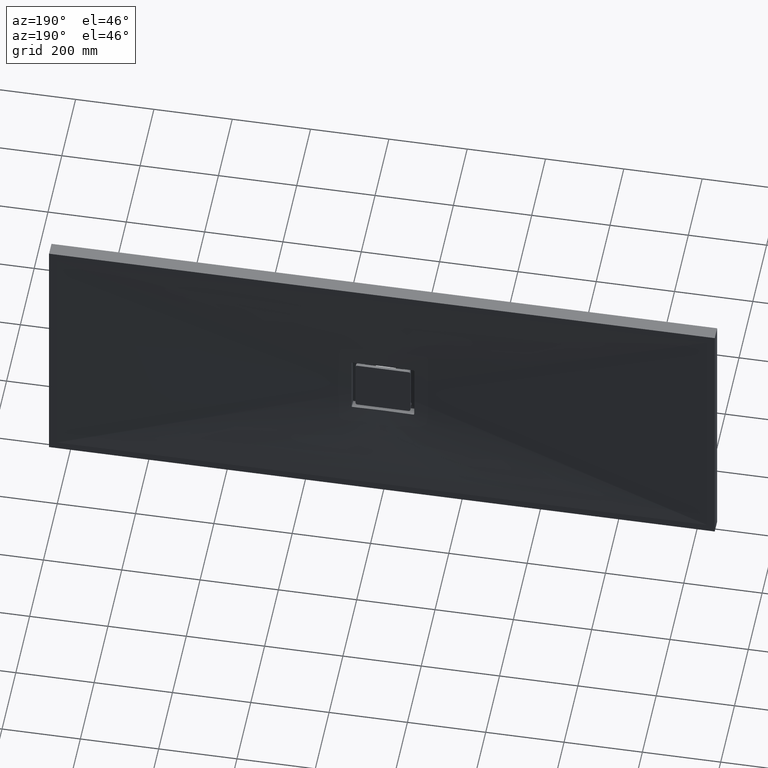
[diagram: clean part render]
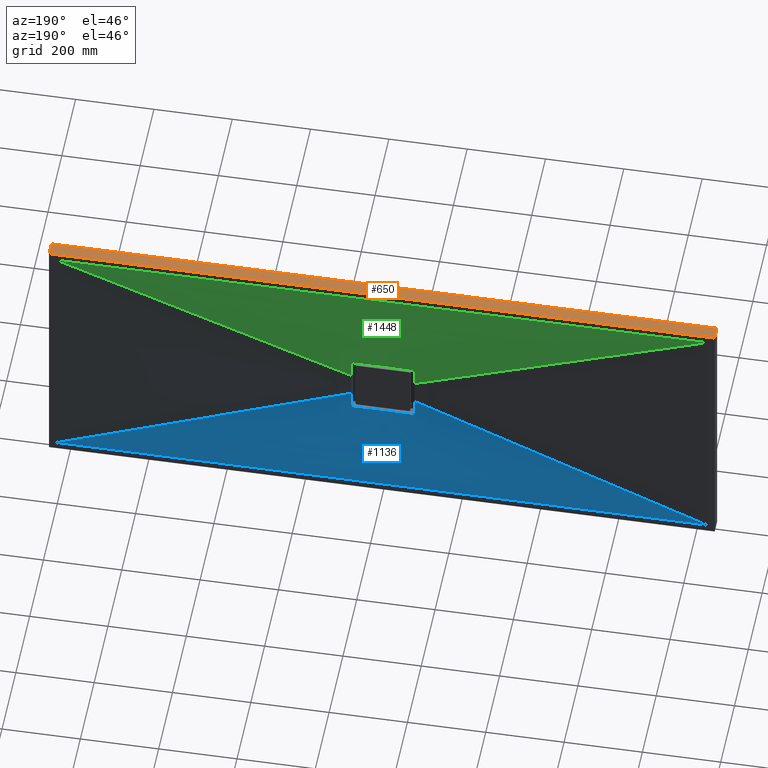
[diagram: same view with three faces highlighted in distinct colors, each labeled with its STEP entity id]
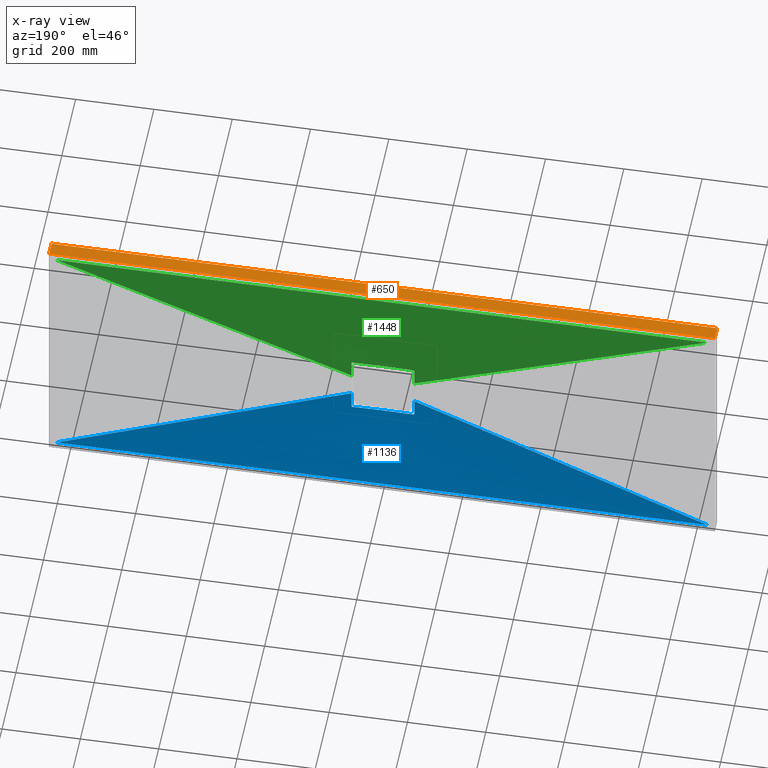
[diagram: x-ray of the same camera — body ghosted, the three highlighted faces saturated]
A machine part, auxiliary view with three faces highlighted in distinct colors.
The next image is the same camera in x-ray (body ghosted, the three faces saturated) — at least one of them is partly hidden behind the body in this view.
Their STEP definitions:

[orange] entity #650 — the highlighted planar face has unit normal (0, 0, -1).
#125 = EDGE_CURVE ( 'NONE', #1651, #409, #2496, .T. ) ;
#202 = VECTOR ( 'NONE', #2241, 1000.000000000000000 ) ;
#226 = VECTOR ( 'NONE', #1838, 1000.000000000000000 ) ;
#241 = LINE ( 'NONE', #2046, #226 ) ;
#409 = VERTEX_POINT ( 'NONE', #1502 ) ;
#631 = VECTOR ( 'NONE', #833, 1000.000000000000000 ) ;
#650 = ADVANCED_FACE ( 'NONE', ( #2344 ), #1731, .F. ) ;
#657 = LINE ( 'NONE', #1629, #631 ) ;
#728 = ORIENTED_EDGE ( 'NONE', *, *, #3049, .T. ) ;
#833 = DIRECTION ( 'NONE',  ( 1.000000000000000000, 0.0000000000000000000, 0.0000000000000000000 ) ) ;
#1092 = ORIENTED_EDGE ( 'NONE', *, *, #125, .T. ) ;
#1117 = ORIENTED_EDGE ( 'NONE', *, *, #1386, .F. ) ;
#1330 = LINE ( 'NONE', #2235, #202 ) ;
#1377 = DIRECTION ( 'NONE',  ( -1.000000000000000000, 0.0000000000000000000, -0.0000000000000000000 ) ) ;
#1386 = EDGE_CURVE ( 'NONE', #1651, #1475, #657, .T. ) ;
#1444 = DIRECTION ( 'NONE',  ( -0.0000000000000000000, -1.000000000000000000, -0.0000000000000000000 ) ) ;
#1475 = VERTEX_POINT ( 'NONE', #2923 ) ;
#1502 = CARTESIAN_POINT ( 'NONE',  ( -850.0000000000001100, 0.0000000000000000000, 349.9999999999999400 ) ) ;
#1629 = CARTESIAN_POINT ( 'NONE',  ( -850.0000000000001100, 35.00000000000000000, 349.9999999999999400 ) ) ;
#1651 = VERTEX_POINT ( 'NONE', #1965 ) ;
#1731 = PLANE ( 'NONE',  #1849 ) ;
#1811 = EDGE_CURVE ( 'NONE', #1475, #2267, #241, .T. ) ;
#1819 = ORIENTED_EDGE ( 'NONE', *, *, #1811, .F. ) ;
#1838 = DIRECTION ( 'NONE',  ( -0.0000000000000000000, -1.000000000000000000, -0.0000000000000000000 ) ) ;
#1849 = AXIS2_PLACEMENT_3D ( 'NONE', #2542, #2591, #1377 ) ;
#1965 = CARTESIAN_POINT ( 'NONE',  ( -850.0000000000001100, 35.00000000000000000, 349.9999999999999400 ) ) ;
#1991 = EDGE_LOOP ( 'NONE', ( #728, #1819, #1117, #1092 ) ) ;
#2046 = CARTESIAN_POINT ( 'NONE',  ( 849.9999999999997700, 35.00000000000000000, 349.9999999999999400 ) ) ;
#2235 = CARTESIAN_POINT ( 'NONE',  ( -850.0000000000001100, 0.0000000000000000000, 349.9999999999999400 ) ) ;
#2241 = DIRECTION ( 'NONE',  ( 1.000000000000000000, 0.0000000000000000000, 0.0000000000000000000 ) ) ;
#2267 = VERTEX_POINT ( 'NONE', #2673 ) ;
#2344 = FACE_OUTER_BOUND ( 'NONE', #1991, .T. ) ;
#2491 = VECTOR ( 'NONE', #1444, 1000.000000000000000 ) ;
#2496 = LINE ( 'NONE', #3105, #2491 ) ;
#2542 = CARTESIAN_POINT ( 'NONE',  ( -850.0000000000001100, 35.00000000000000000, 349.9999999999999400 ) ) ;
#2591 = DIRECTION ( 'NONE',  ( 0.0000000000000000000, 0.0000000000000000000, -1.000000000000000000 ) ) ;
#2673 = CARTESIAN_POINT ( 'NONE',  ( 849.9999999999997700, 0.0000000000000000000, 349.9999999999999400 ) ) ;
#2923 = CARTESIAN_POINT ( 'NONE',  ( 849.9999999999997700, 35.00000000000000000, 349.9999999999999400 ) ) ;
#3049 = EDGE_CURVE ( 'NONE', #409, #2267, #1330, .T. ) ;
#3105 = CARTESIAN_POINT ( 'NONE',  ( -850.0000000000001100, 35.00000000000000000, 349.9999999999999400 ) ) ;

[blue] entity #1136 — the highlighted face is a freeform B-spline surface patch.
#1 = CARTESIAN_POINT ( 'NONE',  ( 78.30547956421020200, 21.03217623247903500, -79.87234740618295300 ) ) ;
#17 = CARTESIAN_POINT ( 'NONE',  ( -9.046871849153447400, 20.00000000000000000, -79.61360674409510800 ) ) ;
#18 = CARTESIAN_POINT ( 'NONE',  ( -12.91942312582411600, 20.05021632625618000, -79.99999999999997200 ) ) ;
#23 = CARTESIAN_POINT ( 'NONE',  ( -553.3333333333303000, 35.00000000000000000, -329.9999999999999400 ) ) ;
#25 = ORIENTED_EDGE ( 'NONE', *, *, #1301, .F. ) ;
#32 = CARTESIAN_POINT ( 'NONE',  ( -32.29412208064554300, 20.30261023562827900, -79.99999999999997200 ) ) ;
#33 = CARTESIAN_POINT ( 'NONE',  ( -484.1666666666631600, 35.00000000000000000, -329.9999999999999400 ) ) ;
#41 = CARTESIAN_POINT ( 'NONE',  ( -22.23164755197436200, 20.00000000000000400, -76.97459716148252100 ) ) ;
#67 = CARTESIAN_POINT ( 'NONE',  ( 60.17644024256305400, 20.00000000000000000, -52.85353583347521300 ) ) ;
#77 = CARTESIAN_POINT ( 'NONE',  ( 4.523666722365327100, 20.00000000000000000, -80.00000000000007100 ) ) ;
#88 = CARTESIAN_POINT ( 'NONE',  ( 78.14677546264489600, 21.03136382548155900, -79.92036934865508600 ) ) ;
#94 = CARTESIAN_POINT ( 'NONE',  ( 276.6666666666709500, 35.00000000000000000, -330.0000000000000600 ) ) ;
#103 = CARTESIAN_POINT ( 'NONE',  ( -25.83609175240990700, 20.20314655147577600, -79.99999999999995700 ) ) ;
#104 = CARTESIAN_POINT ( 'NONE',  ( -6.460740131030348700, 20.00000681553335000, -79.99999999999998600 ) ) ;
#138 = CARTESIAN_POINT ( 'NONE',  ( -760.8333333333325800, 35.00000000000000000, -329.9999999999998900 ) ) ;
#149 = CARTESIAN_POINT ( 'NONE',  ( 25.83385293265633500, 20.20311384259813500, -80.00000000000000000 ) ) ;
#167 = CARTESIAN_POINT ( 'NONE',  ( -45.21009868158184000, 20.50789698637204900, -79.99999999999997200 ) ) ;
#174 = EDGE_LOOP ( 'NONE', ( #2926, #1645, #1406, #608, #373, #698, #25, #1833 ) ) ;
#179 = VERTEX_POINT ( 'NONE', #336 ) ;
#209 = CARTESIAN_POINT ( 'NONE',  ( -34.58333333332801400, 35.00000000000000000, -330.0000000000000600 ) ) ;
#216 = CARTESIAN_POINT ( 'NONE',  ( -69.16666666666148400, 35.00000000000000000, -330.0000000000000600 ) ) ;
#223 = CARTESIAN_POINT ( 'NONE',  ( 77.49999999999978700, 21.02415405481594500, -79.99999999999998600 ) ) ;
#233 = CARTESIAN_POINT ( 'NONE',  ( -80.00000000000024200, 20.11235715227696000, -31.80722891566264800 ) ) ;
#259 = CARTESIAN_POINT ( 'NONE',  ( 6.457946383693451900, 19.99999318594039400, -80.00000000000000000 ) ) ;
#262 = B_SPLINE_CURVE_WITH_KNOTS ( 'NONE', 3,
 ( #2076, #2050, #2319, #2335, #2361, #2373 ),
 .UNSPECIFIED., .F., .F.,
 ( 4, 2, 4 ),
 ( 0.0000000000000000000, 0.02285051133087277100, 0.04570102266174554100 ),
 .UNSPECIFIED. ) ;
#264 = CARTESIAN_POINT ( 'NONE',  ( -587.9166666666640100, 35.00000000000000000, -329.9999999999998900 ) ) ;
#269 = CARTESIAN_POINT ( 'NONE',  ( 71.04166860323943000, 20.92533205718710200, -79.99999999999998600 ) ) ;
#282 = CARTESIAN_POINT ( 'NONE',  ( -138.3333333333283400, 35.00000000000000000, -329.9999999999999400 ) ) ;
#323 = CARTESIAN_POINT ( 'NONE',  ( -64.58396860387857400, 20.82301293873769100, -79.99999999999998600 ) ) ;
#335 = CARTESIAN_POINT ( 'NONE',  ( 12.91676490356594100, 20.05019105769513400, -79.99999999999998600 ) ) ;
#336 = CARTESIAN_POINT ( 'NONE',  ( 79.99999999999978700, 20.11235715227695700, -31.80722891566262300 ) ) ;
#344 = CARTESIAN_POINT ( 'NONE',  ( -51.66803507633059000, 20.61446738832831100, -79.99999999999997200 ) ) ;
#346 = CARTESIAN_POINT ( 'NONE',  ( 77.66507512158781900, 21.02667994769322800, -80.00000000000000000 ) ) ;
#366 = CARTESIAN_POINT ( 'NONE',  ( 77.49999999999978700, 21.02415405481594500, -79.99999999999998600 ) ) ;
#373 = ORIENTED_EDGE ( 'NONE', *, *, #2066, .T. ) ;
#374 = CARTESIAN_POINT ( 'NONE',  ( -795.4166666666662900, 35.00000000000000000, -329.9999999999999400 ) ) ;
#405 = CARTESIAN_POINT ( 'NONE',  ( -77.50000000000024200, 21.02415405481595200, -79.99999999999998600 ) ) ;
#450 = CARTESIAN_POINT ( 'NONE',  ( 79.99999999999981500, 20.99128207139835200, -77.83001817751534200 ) ) ;
#474 = CARTESIAN_POINT ( 'NONE',  ( 79.99999999999978700, 20.98077120313150700, -77.50000000000001400 ) ) ;
#490 = CARTESIAN_POINT ( 'NONE',  ( -66.79034577409181800, 19.99999999999999300, -44.18099116965297000 ) ) ;
#497 = CARTESIAN_POINT ( 'NONE',  ( -51.89970511846245000, 20.00000000000000000, -61.01538737360039700 ) ) ;
#525 = VECTOR ( 'NONE', #1605, 1000.000000000000000 ) ;
#542 = CARTESIAN_POINT ( 'NONE',  ( 34.50535550015783300, 20.00000000000000400, -72.30097420964436600 ) ) ;
#552 = CARTESIAN_POINT ( 'NONE',  ( 587.9166666666689000, 35.00000000000000000, -330.0000000000000600 ) ) ;
#553 = LINE ( 'NONE', #1611, #525 ) ;
#554 = CARTESIAN_POINT ( 'NONE',  ( 34.58333333333865100, 35.00000000000000000, -330.0000000000000600 ) ) ;
#563 = CARTESIAN_POINT ( 'NONE',  ( 69.16666666667183000, 35.00000000000000000, -330.0000000000000600 ) ) ;
#608 = ORIENTED_EDGE ( 'NONE', *, *, #1972, .T. ) ;
#677 = B_SPLINE_CURVE_WITH_KNOTS ( 'NONE', 3,
 ( #2550, #3282, #2118, #2093, #2132, #1862, #1927, #2024, #1188, #1899, #2099, #1742, #1632, #1656, #1385, #1108 ),
 .UNSPECIFIED., .F., .F.,
 ( 4, 2, 2, 2, 2, 2, 2, 4 ),
 ( 0.0000000000000000000, 0.0004882549665675853900, 0.0009765099331351707700, 0.001464764899702756200, 0.001953019866270341500, 0.002441274832837926900, 0.002929529799405512400, 0.003906039732540683100 ),
 .UNSPECIFIED. ) ;
#698 = ORIENTED_EDGE ( 'NONE', *, *, #2541, .T. ) ;
#712 = CARTESIAN_POINT ( 'NONE',  ( -30.53392447059354000, 20.00000000000000000, -74.07438300432758600 ) ) ;
#716 = CARTESIAN_POINT ( 'NONE',  ( -4.523666722365671700, 20.00000000000000000, -80.00000000000004300 ) ) ;
#750 = CARTESIAN_POINT ( 'NONE',  ( 9.046871849153104600, 20.00000000000000000, -79.61360674409509400 ) ) ;
#760 = CARTESIAN_POINT ( 'NONE',  ( 138.3333333333382600, 35.00000000000000000, -330.0000000000000600 ) ) ;
#778 = CARTESIAN_POINT ( 'NONE',  ( 380.4166666666702700, 35.00000000000000000, -330.0000000000000600 ) ) ;
#793 = B_SPLINE_CURVE_WITH_KNOTS ( 'NONE', 3,
 ( #3064, #3053, #3185, #3203, #3216, #3225 ),
 .UNSPECIFIED., .F., .F.,
 ( 4, 2, 4 ),
 ( 0.0000000000000000000, 0.02285051133087275700, 0.04570102266174551300 ),
 .UNSPECIFIED. ) ;
#811 = LINE ( 'NONE', #1089, #841 ) ;
#841 = VECTOR ( 'NONE', #1685, 1000.000000000000200 ) ;
#843 = CARTESIAN_POINT ( 'NONE',  ( 79.93370865088111500, 21.00080001335005900, -78.15799379769116200 ) ) ;
#854 = CARTESIAN_POINT ( 'NONE',  ( 79.02337386123818400, 21.03036708159130100, -79.48896986001535900 ) ) ;
#871 = CARTESIAN_POINT ( 'NONE',  ( 79.66887165860676100, 21.01608554723680200, -78.75418738731750100 ) ) ;
#902 = CARTESIAN_POINT ( 'NONE',  ( 79.38260809433738500, 21.02476419596559500, -79.15298507364693100 ) ) ;
#906 = CARTESIAN_POINT ( 'NONE',  ( 78.75168314616844600, 21.03223926249056300, -79.67024384039011400 ) ) ;
#919 = CARTESIAN_POINT ( 'NONE',  ( 79.15201503502640900, 21.02883826528865500, -79.38345937429271300 ) ) ;
#937 = CARTESIAN_POINT ( 'NONE',  ( -345.8333333333289400, 35.00000000000000000, -329.9999999999999400 ) ) ;
#945 = CARTESIAN_POINT ( 'NONE',  ( 79.99999999999978700, 20.98077120313150700, -77.50000000000001400 ) ) ;
#978 = CARTESIAN_POINT ( 'NONE',  ( 51.89970511846213000, 20.00000000000000000, -61.01538737360042600 ) ) ;
#985 = CARTESIAN_POINT ( 'NONE',  ( 484.1666666666697000, 35.00000000000000000, -330.0000000000000600 ) ) ;
#992 = CARTESIAN_POINT ( 'NONE',  ( 45.46131035844727100, 20.00000000000000000, -65.95245369375409400 ) ) ;
#1005 = CARTESIAN_POINT ( 'NONE',  ( 30.53392447059317400, 19.99999999999998900, -74.07438300432755800 ) ) ;
#1080 = VECTOR ( 'NONE', #1530, 1000.000000000000100 ) ;
#1089 = CARTESIAN_POINT ( 'NONE',  ( 452.1698721862940700, 27.50000000000000400, -179.7783829174423100 ) ) ;
#1097 = CARTESIAN_POINT ( 'NONE',  ( 79.74655629804497900, 21.01254188350593600, -78.60880936526858400 ) ) ;
#1108 = CARTESIAN_POINT ( 'NONE',  ( -77.50000000000024200, 21.02415405481595200, -79.99999999999998600 ) ) ;
#1136 = ADVANCED_FACE ( 'NONE', ( #1595 ), #1744, .F. ) ;
#1137 = CARTESIAN_POINT ( 'NONE',  ( 79.48609116840897600, 21.02221581301246500, -79.02723021996756400 ) ) ;
#1158 = LINE ( 'NONE', #2479, #1080 ) ;
#1179 = CARTESIAN_POINT ( 'NONE',  ( -45.46131035844761200, 19.99999999999999300, -65.95245369375408000 ) ) ;
#1188 = CARTESIAN_POINT ( 'NONE',  ( -79.38379705327395200, 21.02473782822556500, -79.15163052159363100 ) ) ;
#1207 = CARTESIAN_POINT ( 'NONE',  ( 449.5833333333365500, 35.00000000000000000, -330.0000000000000600 ) ) ;
#1218 = CARTESIAN_POINT ( 'NONE',  ( 71.83836216518506000, 20.00000000000000400, -35.36150821916967900 ) ) ;
#1246 = CARTESIAN_POINT ( 'NONE',  ( 73.19534728058536600, 20.00000000000000400, -32.43509791477097800 ) ) ;
#1263 = CARTESIAN_POINT ( 'NONE',  ( 242.0833333333378300, 35.00000000000000000, -330.0000000000000600 ) ) ;
#1301 = EDGE_CURVE ( 'NONE', #1623, #179, #811, .T. ) ;
#1328 = CARTESIAN_POINT ( 'NONE',  ( -830.0000000000002300, 35.00000000000000000, -330.0000000000000000 ) ) ;
#1385 = CARTESIAN_POINT ( 'NONE',  ( -77.83015328350465700, 21.02920588709201200, -79.99999999999990100 ) ) ;
#1406 = ORIENTED_EDGE ( 'NONE', *, *, #2052, .T. ) ;
#1424 = CARTESIAN_POINT ( 'NONE',  ( 829.9999999999997700, 35.00000000000000000, -330.0000000000000000 ) ) ;
#1435 = CARTESIAN_POINT ( 'NONE',  ( -62.56076200988937300, 19.99999999999999600, -49.99061237970262500 ) ) ;
#1451 = CARTESIAN_POINT ( 'NONE',  ( -172.9166666666617100, 35.00000000000000000, -329.9999999999999400 ) ) ;
#1472 = CARTESIAN_POINT ( 'NONE',  ( 22.23164755197400300, 20.00000000000000000, -76.97459716148250700 ) ) ;
#1481 = CARTESIAN_POINT ( 'NONE',  ( 172.9166666666714900, 35.00000000000000000, -330.0000000000000600 ) ) ;
#1488 = EDGE_CURVE ( 'NONE', #1623, #1923, #553, .T. ) ;
#1494 = CARTESIAN_POINT ( 'NONE',  ( 760.8333333333339400, 35.00000000000000000, -330.0000000000000600 ) ) ;
#1513 = CARTESIAN_POINT ( 'NONE',  ( 68.63604932419662000, 20.00000000000000400, -41.23444282729117600 ) ) ;
#1517 = VERTEX_POINT ( 'NONE', #1773 ) ;
#1530 = DIRECTION ( 'NONE',  ( -0.9290887592856064100, 0.01844258882943765000, -0.3693967356195784800 ) ) ;
#1540 = CARTESIAN_POINT ( 'NONE',  ( 77.82740054532381200, 21.02861541485722100, -79.98381061393786200 ) ) ;
#1555 = CARTESIAN_POINT ( 'NONE',  ( -691.6666666666651500, 35.00000000000000000, -329.9999999999998900 ) ) ;
#1559 = CARTESIAN_POINT ( 'NONE',  ( -60.17644024256338000, 19.99999999999999300, -52.85353583347519200 ) ) ;
#1595 = FACE_OUTER_BOUND ( 'NONE', #174, .T. ) ;
#1605 = DIRECTION ( 'NONE',  ( -1.000000000000000000, 0.0000000000000000000, 0.0000000000000000000 ) ) ;
#1611 = CARTESIAN_POINT ( 'NONE',  ( 829.9999999999997700, 35.00000000000000000, -330.0000000000000000 ) ) ;
#1623 = VERTEX_POINT ( 'NONE', #1424 ) ;
#1632 = CARTESIAN_POINT ( 'NONE',  ( -78.60917123750364500, 21.03260270580534200, -79.74638101638410600 ) ) ;
#1639 = CARTESIAN_POINT ( 'NONE',  ( 78.60813216459183600, 21.03260646460708500, -79.74696965929231900 ) ) ;
#1645 = ORIENTED_EDGE ( 'NONE', *, *, #2643, .T. ) ;
#1656 = CARTESIAN_POINT ( 'NONE',  ( -78.15825374343026500, 21.03197731030318000, -79.93365076146186300 ) ) ;
#1675 = CARTESIAN_POINT ( 'NONE',  ( -68.63604932419694600, 19.99999999999999600, -41.23444282729114000 ) ) ;
#1683 = CARTESIAN_POINT ( 'NONE',  ( -34.50535550015817400, 20.00000000000000700, -72.30097420964440900 ) ) ;
#1685 = DIRECTION ( 'NONE',  ( -0.9290887592856063000, -0.01844258882943765300, 0.3693967356195784800 ) ) ;
#1696 = CARTESIAN_POINT ( 'NONE',  ( -449.5833333333295600, 35.00000000000000000, -329.9999999999999400 ) ) ;
#1725 = CARTESIAN_POINT ( 'NONE',  ( 45.20869712853728800, 20.50787390448240900, -79.99999999999998600 ) ) ;
#1742 = CARTESIAN_POINT ( 'NONE',  ( -78.75460865806425700, 21.03223008562620000, -79.66862834156627600 ) ) ;
#1744 = B_SPLINE_SURFACE_WITH_KNOTS ( 'NONE', 3, 1, ( 
 ( #1801, #3174 ),
 ( #374, #2893 ),
 ( #138, #2314 ),
 ( #1555, #1675 ),
 ( #1932, #490 ),
 ( #264, #1435 ),
 ( #23, #1559 ),
 ( #33, #2189 ),
 ( #1696, #497 ),
 ( #1952, #1179 ),
 ( #937, #2760 ),
 ( #3065, #1683 ),
 ( #1943, #712 ),
 ( #1451, #41 ),
 ( #282, #3102 ),
 ( #216, #17 ),
 ( #209, #716 ),
 ( #554, #77 ),
 ( #563, #750 ),
 ( #760, #1983 ),
 ( #1481, #1472 ),
 ( #1263, #1005 ),
 ( #94, #542 ),
 ( #3113, #3133 ),
 ( #778, #992 ),
 ( #1207, #978 ),
 ( #985, #2246 ),
 ( #3143, #67 ),
 ( #552, #2005 ),
 ( #1994, #1754 ),
 ( #1765, #1513 ),
 ( #1494, #1218 ),
 ( #3098, #1246 ),
 ( #1978, #2538 ) ),
 .UNSPECIFIED., .F., .F., .F.,
 ( 4, 2, 2, 2, 2, 2, 2, 2, 2, 2, 2, 2, 2, 2, 2, 2, 4 ),
 ( 2, 2 ),
 ( 0.0000000000000000000, 0.06249999999999997200, 0.1249999999999999400, 0.1874999999999999200, 0.2499999999999998900, 0.3124999999999998900, 0.3749999999999998300, 0.4374999999999997800, 0.5000000000000000000, 0.5624999999999997800, 0.6249999999999997800, 0.6874999999999996700, 0.7499999999999996700, 0.8124999999999997800, 0.8749999999999997800, 0.9374999999999998900, 1.000000000000000000 ),
 ( 0.0000000000000000000, 1.000000000000000000 ),
 .UNSPECIFIED. ) ;
#1754 = CARTESIAN_POINT ( 'NONE',  ( 66.79034577409149200, 19.99999999999999600, -44.18099116965296200 ) ) ;
#1755 = CARTESIAN_POINT ( 'NONE',  ( -77.50000000000024200, 21.02415405481595200, -79.99999999999998600 ) ) ;
#1765 = CARTESIAN_POINT ( 'NONE',  ( 691.6666666666679900, 35.00000000000000000, -330.0000000000000600 ) ) ;
#1773 = CARTESIAN_POINT ( 'NONE',  ( -80.00000000000024200, 20.98077120313150700, -77.49999999999998600 ) ) ;
#1801 = CARTESIAN_POINT ( 'NONE',  ( -830.0000000000002300, 35.00000000000000000, -330.0000000000000000 ) ) ;
#1833 = ORIENTED_EDGE ( 'NONE', *, *, #1488, .T. ) ;
#1862 = CARTESIAN_POINT ( 'NONE',  ( -79.74714284437990800, 21.01251714497506700, -78.60777495866254600 ) ) ;
#1886 = B_SPLINE_CURVE_WITH_KNOTS ( 'NONE', 3,
 ( #405, #2389, #323, #344, #167, #32, #103, #18, #104, #259, #335, #149, #2836, #1725, #2574, #2245, #269, #366 ),
 .UNSPECIFIED., .F., .F.,
 ( 4, 2, 2, 2, 2, 2, 2, 2, 4 ),
 ( 0.0000000000000000000, 0.01937634249914359900, 0.03875268499828719800, 0.05812902749743079800, 0.07750536999657439700, 0.09688171249571800300, 0.1162580549948616000, 0.1356343974940051900, 0.1550107399931487900 ),
 .UNSPECIFIED. ) ;
#1899 = CARTESIAN_POINT ( 'NONE',  ( -79.15336142175282000, 21.02881978043292600, -79.38227806841669600 ) ) ;
#1923 = VERTEX_POINT ( 'NONE', #1328 ) ;
#1927 = CARTESIAN_POINT ( 'NONE',  ( -79.67045877874753000, 21.01601597507223600, -78.75130574343805300 ) ) ;
#1932 = CARTESIAN_POINT ( 'NONE',  ( -657.0833333333313200, 35.00000000000000000, -329.9999999999998900 ) ) ;
#1943 = CARTESIAN_POINT ( 'NONE',  ( -242.0833333333285100, 35.00000000000000000, -329.9999999999999400 ) ) ;
#1952 = CARTESIAN_POINT ( 'NONE',  ( -380.4166666666625400, 35.00000000000000000, -329.9999999999999400 ) ) ;
#1972 = EDGE_CURVE ( 'NONE', #2694, #2771, #1886, .T. ) ;
#1978 = CARTESIAN_POINT ( 'NONE',  ( 829.9999999999997700, 35.00000000000000000, -330.0000000000000000 ) ) ;
#1983 = CARTESIAN_POINT ( 'NONE',  ( 17.90125769823898900, 19.99999999999999600, -78.10068656471374000 ) ) ;
#1994 = CARTESIAN_POINT ( 'NONE',  ( 657.0833333333349600, 35.00000000000000000, -330.0000000000000600 ) ) ;
#2005 = CARTESIAN_POINT ( 'NONE',  ( 62.56076200988906800, 20.00000000000000000, -49.99061237970264000 ) ) ;
#2024 = CARTESIAN_POINT ( 'NONE',  ( -79.48927535260246200, 21.02212493641876300, -79.02297109142998000 ) ) ;
#2050 = CARTESIAN_POINT ( 'NONE',  ( 79.99999999999981500, 20.73828277610361300, -69.88639599272896400 ) ) ;
#2052 = EDGE_CURVE ( 'NONE', #1517, #2694, #677, .T. ) ;
#2066 = EDGE_CURVE ( 'NONE', #2771, #2473, #2096, .T. ) ;
#2076 = CARTESIAN_POINT ( 'NONE',  ( 79.99999999999978700, 20.98077120313150700, -77.50000000000001400 ) ) ;
#2089 = VERTEX_POINT ( 'NONE', #233 ) ;
#2093 = CARTESIAN_POINT ( 'NONE',  ( -79.92042981767072300, 21.00024886740866800, -78.14653370414338000 ) ) ;
#2096 = B_SPLINE_CURVE_WITH_KNOTS ( 'NONE', 3,
 ( #223, #346, #1540, #88, #1, #1639, #906, #854, #919, #902, #1137, #871, #1097, #843, #450, #474 ),
 .UNSPECIFIED., .F., .F.,
 ( 4, 2, 2, 2, 2, 2, 2, 4 ),
 ( 0.0000000000000000000, 0.0004882548665879924200, 0.0009765097331759848500, 0.001464764599763977300, 0.001953019466351969700, 0.002441274332939962300, 0.002929529199527954600, 0.003906038932703977600 ),
 .UNSPECIFIED. ) ;
#2099 = CARTESIAN_POINT ( 'NONE',  ( -79.02762322198972800, 21.03032652516228800, -79.48578927894483600 ) ) ;
#2118 = CARTESIAN_POINT ( 'NONE',  ( -79.98382324336206800, 20.99096745034891900, -77.82727424065691900 ) ) ;
#2132 = CARTESIAN_POINT ( 'NONE',  ( -79.87244661449733500, 21.00463134451672400, -78.30517910023047500 ) ) ;
#2189 = CARTESIAN_POINT ( 'NONE',  ( -54.84611985109710000, 19.99999999999999300, -58.36611472118337900 ) ) ;
#2245 = CARTESIAN_POINT ( 'NONE',  ( 64.58339321010670600, 20.82300380075217900, -80.00000000000000000 ) ) ;
#2246 = CARTESIAN_POINT ( 'NONE',  ( 54.84611985109676600, 20.00000000000000000, -58.36611472118341500 ) ) ;
#2273 = CARTESIAN_POINT ( 'NONE',  ( 77.49999999999978700, 21.02415405481594500, -79.99999999999998600 ) ) ;
#2314 = CARTESIAN_POINT ( 'NONE',  ( -71.83836216518540100, 20.00000000000000000, -35.36150821916965700 ) ) ;
#2319 = CARTESIAN_POINT ( 'NONE',  ( 79.99999999999977300, 20.54905729670756300, -62.27177969640180100 ) ) ;
#2335 = CARTESIAN_POINT ( 'NONE',  ( 79.99999999999977300, 20.26762007572250100, -47.04070330896242800 ) ) ;
#2361 = CARTESIAN_POINT ( 'NONE',  ( 79.99999999999977300, 20.17418117764052000, -39.42426654057539500 ) ) ;
#2373 = CARTESIAN_POINT ( 'NONE',  ( 79.99999999999978700, 20.11235715227695700, -31.80722891566262300 ) ) ;
#2389 = CARTESIAN_POINT ( 'NONE',  ( -71.04196113106962700, 20.92533653329443400, -79.99999999999998600 ) ) ;
#2403 = EDGE_CURVE ( 'NONE', #2089, #1923, #1158, .T. ) ;
#2473 = VERTEX_POINT ( 'NONE', #945 ) ;
#2479 = CARTESIAN_POINT ( 'NONE',  ( -452.1698721862944700, 27.50000000000000400, -179.7783829174423100 ) ) ;
#2538 = CARTESIAN_POINT ( 'NONE',  ( 74.33974437258837000, 20.00000000000000000, -29.55676583488460800 ) ) ;
#2541 = EDGE_CURVE ( 'NONE', #2473, #179, #262, .T. ) ;
#2550 = CARTESIAN_POINT ( 'NONE',  ( -80.00000000000024200, 20.98077120313150700, -77.49999999999998600 ) ) ;
#2574 = CARTESIAN_POINT ( 'NONE',  ( 51.66690468939688700, 20.61444898411290400, -80.00000000000002800 ) ) ;
#2643 = EDGE_CURVE ( 'NONE', #2089, #1517, #793, .T. ) ;
#2694 = VERTEX_POINT ( 'NONE', #1755 ) ;
#2760 = CARTESIAN_POINT ( 'NONE',  ( -41.96907992321271800, 20.00000000000000400, -68.23962749205878700 ) ) ;
#2771 = VERTEX_POINT ( 'NONE', #2273 ) ;
#2836 = CARTESIAN_POINT ( 'NONE',  ( 32.29215652617351400, 20.30257980086405200, -79.99999999999998600 ) ) ;
#2893 = CARTESIAN_POINT ( 'NONE',  ( -73.19534728058569300, 20.00000000000000000, -32.43509791477095000 ) ) ;
#2926 = ORIENTED_EDGE ( 'NONE', *, *, #2403, .F. ) ;
#3053 = CARTESIAN_POINT ( 'NONE',  ( -80.00000000000024200, 20.17418117764052400, -39.42426654057540200 ) ) ;
#3064 = CARTESIAN_POINT ( 'NONE',  ( -80.00000000000024200, 20.11235715227696000, -31.80722891566264800 ) ) ;
#3065 = CARTESIAN_POINT ( 'NONE',  ( -276.6666666666619700, 35.00000000000000000, -329.9999999999999400 ) ) ;
#3098 = CARTESIAN_POINT ( 'NONE',  ( 795.4166666666668600, 35.00000000000000000, -330.0000000000000600 ) ) ;
#3102 = CARTESIAN_POINT ( 'NONE',  ( -17.90125769823933100, 20.00000000000000400, -78.10068656471376900 ) ) ;
#3113 = CARTESIAN_POINT ( 'NONE',  ( 345.8333333333372400, 35.00000000000000000, -330.0000000000000600 ) ) ;
#3133 = CARTESIAN_POINT ( 'NONE',  ( 41.96907992321238400, 20.00000000000000700, -68.23962749205877300 ) ) ;
#3143 = CARTESIAN_POINT ( 'NONE',  ( 553.3333333333358700, 35.00000000000000000, -330.0000000000000600 ) ) ;
#3174 = CARTESIAN_POINT ( 'NONE',  ( -74.33974437258871100, 20.00000000000000000, -29.55676583488459000 ) ) ;
#3185 = CARTESIAN_POINT ( 'NONE',  ( -80.00000000000017100, 20.26762007572250500, -47.04070330896244200 ) ) ;
#3203 = CARTESIAN_POINT ( 'NONE',  ( -80.00000000000017100, 20.54905729670756600, -62.27177969640177900 ) ) ;
#3216 = CARTESIAN_POINT ( 'NONE',  ( -80.00000000000024200, 20.73828277610361700, -69.88639599272899300 ) ) ;
#3225 = CARTESIAN_POINT ( 'NONE',  ( -80.00000000000024200, 20.98077120313150700, -77.49999999999998600 ) ) ;
#3282 = CARTESIAN_POINT ( 'NONE',  ( -80.00000000000027000, 20.98602666822411000, -77.66501006080801500 ) ) ;

[green] entity #1448 — the highlighted face is a freeform B-spline surface patch.
#3 = CARTESIAN_POINT ( 'NONE',  ( -345.8333333333324600, 35.00000000000000000, 329.9999999999998300 ) ) ;
#39 = CARTESIAN_POINT ( 'NONE',  ( 79.99999999999984400, 20.11235715227695700, 31.80722891566264800 ) ) ;
#45 = CARTESIAN_POINT ( 'NONE',  ( -71.04166860323988400, 20.92533205718710600, 80.00000000000007100 ) ) ;
#60 = CARTESIAN_POINT ( 'NONE',  ( 74.33974437258837000, 20.00000000000000000, 29.55676583488460500 ) ) ;
#71 = ORIENTED_EDGE ( 'NONE', *, *, #1163, .T. ) ;
#74 = CARTESIAN_POINT ( 'NONE',  ( -62.56076200988940200, 20.00000000000000000, 49.99061237970268200 ) ) ;
#99 = CARTESIAN_POINT ( 'NONE',  ( 34.50535550015785400, 20.00000000000000700, 72.30097420964440900 ) ) ;
#126 = CARTESIAN_POINT ( 'NONE',  ( 657.0833333333332600, 35.00000000000000000, 329.9999999999997700 ) ) ;
#133 = CARTESIAN_POINT ( 'NONE',  ( 78.60917123750324700, 21.03260270580534200, 79.74638101638422000 ) ) ;
#144 = CARTESIAN_POINT ( 'NONE',  ( -172.9166666666659200, 35.00000000000000000, 329.9999999999998300 ) ) ;
#145 = CARTESIAN_POINT ( 'NONE',  ( -41.96907992321269600, 20.00000000000000700, 68.23962749205878700 ) ) ;
#155 = CARTESIAN_POINT ( 'NONE',  ( 54.84611985109674500, 19.99999999999999300, 58.36611472118337900 ) ) ;
#225 = CARTESIAN_POINT ( 'NONE',  ( -380.4166666666658300, 35.00000000000000000, 329.9999999999998300 ) ) ;
#247 = CARTESIAN_POINT ( 'NONE',  ( -68.63604932419696100, 20.00000000000000400, 41.23444282729119000 ) ) ;
#250 = CARTESIAN_POINT ( 'NONE',  ( -795.4166666666666300, 35.00000000000000000, 329.9999999999998300 ) ) ;
#254 = CARTESIAN_POINT ( 'NONE',  ( -4.523666722365660100, 20.00000000000000000, 80.00000000000002800 ) ) ;
#258 = CARTESIAN_POINT ( 'NONE',  ( -691.6666666666664000, 35.00000000000000000, 329.9999999999998300 ) ) ;
#278 = CARTESIAN_POINT ( 'NONE',  ( 79.87244661449693700, 21.00463134451672100, 78.30517910023057500 ) ) ;
#283 = CARTESIAN_POINT ( 'NONE',  ( -449.5833333333326300, 35.00000000000000000, 329.9999999999998300 ) ) ;
#315 = CARTESIAN_POINT ( 'NONE',  ( -760.8333333333332600, 35.00000000000000000, 329.9999999999998300 ) ) ;
#322 = CARTESIAN_POINT ( 'NONE',  ( -51.89970511846245700, 20.00000000000000000, 61.01538737360041900 ) ) ;
#337 = DIRECTION ( 'NONE',  ( 1.000000000000000000, 0.0000000000000000000, 0.0000000000000000000 ) ) ;
#353 = CARTESIAN_POINT ( 'NONE',  ( -276.6666666666657800, 35.00000000000000000, 329.9999999999998300 ) ) ;
#354 = CARTESIAN_POINT ( 'NONE',  ( 79.98382324336155600, 20.99096745034891900, 77.82727424065699000 ) ) ;
#368 = CARTESIAN_POINT ( 'NONE',  ( -484.1666666666660000, 35.00000000000000000, 329.9999999999998300 ) ) ;
#408 = CARTESIAN_POINT ( 'NONE',  ( -34.58333333333283800, 35.00000000000000000, 329.9999999999998300 ) ) ;
#445 = B_SPLINE_CURVE_WITH_KNOTS ( 'NONE', 3,
 ( #2156, #998, #1471, #1323, #1291, #1309 ),
 .UNSPECIFIED., .F., .F.,
 ( 4, 2, 4 ),
 ( 0.0000000000000000000, 0.02285051133087275700, 0.04570102266174551300 ),
 .UNSPECIFIED. ) ;
#462 = CARTESIAN_POINT ( 'NONE',  ( 78.75460865806393000, 21.03223008562621400, 79.66862834156636100 ) ) ;
#485 = CARTESIAN_POINT ( 'NONE',  ( 78.15825374342986700, 21.03197731030318400, 79.93365076146193400 ) ) ;
#500 = CARTESIAN_POINT ( 'NONE',  ( 32.29412208064514500, 20.30261023562827900, 80.00000000000007100 ) ) ;
#517 = CARTESIAN_POINT ( 'NONE',  ( 829.9999999999997700, 35.00000000000000000, 329.9999999999998900 ) ) ;
#521 = ORIENTED_EDGE ( 'NONE', *, *, #1104, .T. ) ;
#558 = CARTESIAN_POINT ( 'NONE',  ( 45.46131035844728500, 19.99999999999999300, 65.95245369375409400 ) ) ;
#559 = FACE_OUTER_BOUND ( 'NONE', #2020, .T. ) ;
#561 = CARTESIAN_POINT ( 'NONE',  ( 77.83015328350425900, 21.02920588709201200, 80.00000000000009900 ) ) ;
#562 = CARTESIAN_POINT ( 'NONE',  ( 64.58396860387819100, 20.82301293873768000, 80.00000000000007100 ) ) ;
#567 = ORIENTED_EDGE ( 'NONE', *, *, #1900, .T. ) ;
#570 = CARTESIAN_POINT ( 'NONE',  ( 77.49999999999984400, 21.02415405481595200, 80.00000000000005700 ) ) ;
#576 = CARTESIAN_POINT ( 'NONE',  ( -830.0000000000001100, 35.00000000000000000, 329.9999999999998900 ) ) ;
#577 = CARTESIAN_POINT ( 'NONE',  ( 71.04196113106924300, 20.92533653329443400, 80.00000000000005700 ) ) ;
#601 = CARTESIAN_POINT ( 'NONE',  ( 79.38379705327361100, 21.02473782822556500, 79.15163052159377300 ) ) ;
#612 = DIRECTION ( 'NONE',  ( -0.9290887592856064100, -0.01844258882943765300, -0.3693967356195783600 ) ) ;
#615 = VERTEX_POINT ( 'NONE', #2266 ) ;
#633 = CARTESIAN_POINT ( 'NONE',  ( 760.8333333333329200, 35.00000000000000000, 329.9999999999997700 ) ) ;
#641 = CARTESIAN_POINT ( 'NONE',  ( 9.046871849153118800, 20.00000000000000000, 79.61360674409509400 ) ) ;
#645 = CARTESIAN_POINT ( 'NONE',  ( 51.89970511846212300, 20.00000000000000000, 61.01538737360039700 ) ) ;
#666 = CARTESIAN_POINT ( 'NONE',  ( 484.1666666666669100, 35.00000000000000000, 329.9999999999997700 ) ) ;
#671 = CARTESIAN_POINT ( 'NONE',  ( 380.4166666666670800, 35.00000000000000000, 329.9999999999998300 ) ) ;
#690 = CARTESIAN_POINT ( 'NONE',  ( -77.50000000000022700, 21.02415405481595600, 80.00000000000009900 ) ) ;
#694 = CARTESIAN_POINT ( 'NONE',  ( 587.9166666666666300, 35.00000000000000000, 329.9999999999997700 ) ) ;
#731 = VECTOR ( 'NONE', #1768, 1000.000000000000100 ) ;
#765 = CARTESIAN_POINT ( 'NONE',  ( 60.17644024256305400, 19.99999999999999300, 52.85353583347519200 ) ) ;
#790 = LINE ( 'NONE', #2740, #731 ) ;
#803 = EDGE_CURVE ( 'NONE', #869, #615, #2009, .T. ) ;
#808 = EDGE_CURVE ( 'NONE', #2294, #1869, #445, .T. ) ;
#849 = CARTESIAN_POINT ( 'NONE',  ( 795.4166666666661700, 35.00000000000000000, 329.9999999999998300 ) ) ;
#856 = CARTESIAN_POINT ( 'NONE',  ( -45.46131035844760500, 20.00000000000000000, 65.95245369375408000 ) ) ;
#867 = CARTESIAN_POINT ( 'NONE',  ( 71.83836216518504600, 20.00000000000000000, 35.36150821916967100 ) ) ;
#869 = VERTEX_POINT ( 'NONE', #39 ) ;
#873 = CARTESIAN_POINT ( 'NONE',  ( 691.6666666666664000, 35.00000000000000000, 329.9999999999997700 ) ) ;
#883 = ORIENTED_EDGE ( 'NONE', *, *, #803, .T. ) ;
#891 = CARTESIAN_POINT ( 'NONE',  ( 30.53392447059319500, 20.00000000000000000, 74.07438300432757200 ) ) ;
#898 = CARTESIAN_POINT ( 'NONE',  ( 73.19534728058533800, 20.00000000000000000, 32.43509791477097100 ) ) ;
#990 = CARTESIAN_POINT ( 'NONE',  ( 79.99999999999985800, 20.98077120313150700, 77.50000000000007100 ) ) ;
#998 = CARTESIAN_POINT ( 'NONE',  ( -80.00000000000022700, 20.73828277610362000, 69.88639599272902100 ) ) ;
#1013 = CARTESIAN_POINT ( 'NONE',  ( 51.66803507633019200, 20.61446738832830100, 80.00000000000005700 ) ) ;
#1024 = CARTESIAN_POINT ( 'NONE',  ( 79.99999999999985800, 20.98602666822411000, 77.66501006080808600 ) ) ;
#1056 = CARTESIAN_POINT ( 'NONE',  ( 22.23164755197402800, 20.00000000000000400, 76.97459716148252100 ) ) ;
#1069 = CARTESIAN_POINT ( 'NONE',  ( 69.16666666666725400, 35.00000000000000000, 329.9999999999998300 ) ) ;
#1104 = EDGE_CURVE ( 'NONE', #2992, #1181, #1955, .T. ) ;
#1110 = LINE ( 'NONE', #2847, #1125 ) ;
#1125 = VECTOR ( 'NONE', #337, 1000.000000000000000 ) ;
#1161 = CARTESIAN_POINT ( 'NONE',  ( -73.19534728058570700, 20.00000000000000400, 32.43509791477099200 ) ) ;
#1163 = EDGE_CURVE ( 'NONE', #2948, #3222, #1110, .T. ) ;
#1177 = CARTESIAN_POINT ( 'NONE',  ( 79.67045877874714700, 21.01601597507223900, 78.75130574343815200 ) ) ;
#1181 = VERTEX_POINT ( 'NONE', #690 ) ;
#1197 = CARTESIAN_POINT ( 'NONE',  ( -60.17644024256337300, 20.00000000000000000, 52.85353583347522700 ) ) ;
#1200 = CARTESIAN_POINT ( 'NONE',  ( -587.9166666666661700, 35.00000000000000000, 329.9999999999998300 ) ) ;
#1216 = CARTESIAN_POINT ( 'NONE',  ( -657.0833333333330300, 35.00000000000000000, 329.9999999999998300 ) ) ;
#1239 = CARTESIAN_POINT ( 'NONE',  ( 25.83609175240952600, 20.20314655147577900, 80.00000000000009900 ) ) ;
#1242 = CARTESIAN_POINT ( 'NONE',  ( -66.79034577409181800, 19.99999999999999600, 44.18099116965301200 ) ) ;
#1256 = ORIENTED_EDGE ( 'NONE', *, *, #1973, .T. ) ;
#1291 = CARTESIAN_POINT ( 'NONE',  ( -80.00000000000032700, 20.17418117764052700, 39.42426654057546600 ) ) ;
#1309 = CARTESIAN_POINT ( 'NONE',  ( -80.00000000000024200, 20.11235715227696000, 31.80722891566270500 ) ) ;
#1323 = CARTESIAN_POINT ( 'NONE',  ( -80.00000000000019900, 20.26762007572249800, 47.04070330896248500 ) ) ;
#1329 = EDGE_CURVE ( 'NONE', #2948, #1869, #790, .T. ) ;
#1340 = CARTESIAN_POINT ( 'NONE',  ( -553.3333333333328000, 35.00000000000000000, 329.9999999999998300 ) ) ;
#1357 = CARTESIAN_POINT ( 'NONE',  ( 17.90125769823900400, 20.00000000000000400, 78.10068656471376900 ) ) ;
#1373 = CARTESIAN_POINT ( 'NONE',  ( 66.79034577409146300, 19.99999999999999300, 44.18099116965295500 ) ) ;
#1448 = ADVANCED_FACE ( 'NONE', ( #559 ), #2940, .F. ) ;
#1471 = CARTESIAN_POINT ( 'NONE',  ( -80.00000000000022700, 20.54905729670758100, 62.27177969640185000 ) ) ;
#1484 = CARTESIAN_POINT ( 'NONE',  ( 79.99999999999988600, 20.26762007572250500, 47.04070330896247000 ) ) ;
#1518 = CARTESIAN_POINT ( 'NONE',  ( 138.3333333333339700, 35.00000000000000000, 329.9999999999998300 ) ) ;
#1529 = B_SPLINE_CURVE_WITH_KNOTS ( 'NONE', 3,
 ( #990, #1024, #354, #2086, #278, #3079, #1177, #2626, #601, #2079, #2316, #462, #133, #485, #561, #570 ),
 .UNSPECIFIED., .F., .F.,
 ( 4, 2, 2, 2, 2, 2, 2, 4 ),
 ( 0.0000000000000000000, 0.0004882549665675944900, 0.0009765099331351889900, 0.001464764899702783500, 0.001953019866270378000, 0.002441274832837972400, 0.002929529799405567100, 0.003906039732540756000 ),
 .UNSPECIFIED. ) ;
#1532 = CARTESIAN_POINT ( 'NONE',  ( -77.50000000000022700, 21.02415405481595600, 80.00000000000009900 ) ) ;
#1551 = CARTESIAN_POINT ( 'NONE',  ( -69.16666666666604600, 35.00000000000000000, 329.9999999999998300 ) ) ;
#1560 = CARTESIAN_POINT ( 'NONE',  ( -80.00000000000024200, 20.11235715227696000, 31.80722891566270500 ) ) ;
#1601 = CARTESIAN_POINT ( 'NONE',  ( 34.58333333333380500, 35.00000000000000000, 329.9999999999998300 ) ) ;
#1608 = CARTESIAN_POINT ( 'NONE',  ( 4.523666722365339500, 20.00000000000000000, 80.00000000000007100 ) ) ;
#1701 = CARTESIAN_POINT ( 'NONE',  ( -9.046871849153427900, 20.00000000000000000, 79.61360674409509400 ) ) ;
#1768 = DIRECTION ( 'NONE',  ( 0.9290887592856064100, -0.01844258882943765300, -0.3693967356195783100 ) ) ;
#1841 = CARTESIAN_POINT ( 'NONE',  ( -74.33974437258871100, 20.00000000000000000, 29.55676583488462200 ) ) ;
#1869 = VERTEX_POINT ( 'NONE', #1560 ) ;
#1900 = EDGE_CURVE ( 'NONE', #615, #2992, #1529, .T. ) ;
#1903 = CARTESIAN_POINT ( 'NONE',  ( -17.90125769823931300, 19.99999999999999600, 78.10068656471374000 ) ) ;
#1955 = B_SPLINE_CURVE_WITH_KNOTS ( 'NONE', 3,
 ( #2579, #577, #562, #1013, #2734, #500, #1239, #2019, #2029, #2681, #2980, #2764, #2826, #2827, #2750, #2748, #45, #1532 ),
 .UNSPECIFIED., .F., .F.,
 ( 4, 2, 2, 2, 2, 2, 2, 2, 4 ),
 ( 0.0000000000000000000, 0.01937634249914360300, 0.03875268499828720500, 0.05812902749743080500, 0.07750536999657441100, 0.09688171249571801700, 0.1162580549948616100, 0.1356343974940052200, 0.1550107399931488200 ),
 .UNSPECIFIED. ) ;
#1973 = EDGE_CURVE ( 'NONE', #3222, #869, #3019, .T. ) ;
#2009 = B_SPLINE_CURVE_WITH_KNOTS ( 'NONE', 3,
 ( #2135, #2417, #1484, #2312, #2949, #2138 ),
 .UNSPECIFIED., .F., .F.,
 ( 4, 2, 4 ),
 ( 0.0000000000000000000, 0.02285051133087276400, 0.04570102266174552700 ),
 .UNSPECIFIED. ) ;
#2019 = CARTESIAN_POINT ( 'NONE',  ( 12.91942312582373000, 20.05021632625617300, 80.00000000000009900 ) ) ;
#2020 = EDGE_LOOP ( 'NONE', ( #567, #521, #2708, #3007, #2691, #71, #1256, #883 ) ) ;
#2029 = CARTESIAN_POINT ( 'NONE',  ( 6.460740131029957900, 20.00000681553335400, 80.00000000000008500 ) ) ;
#2079 = CARTESIAN_POINT ( 'NONE',  ( 79.15336142175247900, 21.02881978043292600, 79.38227806841688100 ) ) ;
#2086 = CARTESIAN_POINT ( 'NONE',  ( 79.92042981767023900, 21.00024886740866100, 78.14653370414345100 ) ) ;
#2088 = CARTESIAN_POINT ( 'NONE',  ( -34.50535550015816000, 20.00000000000000400, 72.30097420964439400 ) ) ;
#2102 = CARTESIAN_POINT ( 'NONE',  ( 553.3333333333334800, 35.00000000000000000, 329.9999999999997700 ) ) ;
#2120 = CARTESIAN_POINT ( 'NONE',  ( 62.56076200988902500, 19.99999999999999600, 49.99061237970262500 ) ) ;
#2135 = CARTESIAN_POINT ( 'NONE',  ( 79.99999999999984400, 20.11235715227695700, 31.80722891566264800 ) ) ;
#2138 = CARTESIAN_POINT ( 'NONE',  ( 79.99999999999985800, 20.98077120313150700, 77.50000000000007100 ) ) ;
#2156 = CARTESIAN_POINT ( 'NONE',  ( -80.00000000000022700, 20.98077120313151400, 77.50000000000007100 ) ) ;
#2162 = CARTESIAN_POINT ( 'NONE',  ( 41.96907992321238400, 20.00000000000000400, 68.23962749205880100 ) ) ;
#2170 = CARTESIAN_POINT ( 'NONE',  ( 345.8333333333337700, 35.00000000000000000, 329.9999999999998300 ) ) ;
#2266 = CARTESIAN_POINT ( 'NONE',  ( 79.99999999999985800, 20.98077120313150700, 77.50000000000007100 ) ) ;
#2269 = CARTESIAN_POINT ( 'NONE',  ( 242.0833333333338800, 35.00000000000000000, 329.9999999999998300 ) ) ;
#2280 = CARTESIAN_POINT ( 'NONE',  ( 449.5833333333336000, 35.00000000000000000, 329.9999999999998300 ) ) ;
#2286 = CARTESIAN_POINT ( 'NONE',  ( -54.84611985109710000, 20.00000000000000000, 58.36611472118342200 ) ) ;
#2291 = CARTESIAN_POINT ( 'NONE',  ( 172.9166666666672800, 35.00000000000000000, 329.9999999999998300 ) ) ;
#2294 = VERTEX_POINT ( 'NONE', #3016 ) ;
#2303 = CARTESIAN_POINT ( 'NONE',  ( 68.63604932419662000, 19.99999999999999600, 41.23444282729115400 ) ) ;
#2310 = CARTESIAN_POINT ( 'NONE',  ( -71.83836216518540100, 20.00000000000000400, 35.36150821916968600 ) ) ;
#2312 = CARTESIAN_POINT ( 'NONE',  ( 79.99999999999985800, 20.54905729670755900, 62.27177969640181500 ) ) ;
#2316 = CARTESIAN_POINT ( 'NONE',  ( 79.02762322198935900, 21.03032652516228400, 79.48578927894492100 ) ) ;
#2416 = CARTESIAN_POINT ( 'NONE',  ( 77.49999999999984400, 21.02415405481595200, 80.00000000000005700 ) ) ;
#2417 = CARTESIAN_POINT ( 'NONE',  ( 79.99999999999991500, 20.17418117764052400, 39.42426654057543800 ) ) ;
#2494 = CARTESIAN_POINT ( 'NONE',  ( -242.0833333333324900, 35.00000000000000000, 329.9999999999998300 ) ) ;
#2579 = CARTESIAN_POINT ( 'NONE',  ( 77.49999999999984400, 21.02415405481595200, 80.00000000000005700 ) ) ;
#2589 = CARTESIAN_POINT ( 'NONE',  ( 829.9999999999996600, 35.00000000000000000, 329.9999999999998900 ) ) ;
#2607 = CARTESIAN_POINT ( 'NONE',  ( 452.1698721862940700, 27.50000000000000400, 179.7783829174422600 ) ) ;
#2617 = CARTESIAN_POINT ( 'NONE',  ( -830.0000000000001100, 35.00000000000000000, 329.9999999999998900 ) ) ;
#2626 = CARTESIAN_POINT ( 'NONE',  ( 79.48927535260212100, 21.02212493641876300, 79.02297109143003700 ) ) ;
#2681 = CARTESIAN_POINT ( 'NONE',  ( -6.457946383693844400, 19.99999318594039700, 80.00000000000008500 ) ) ;
#2691 = ORIENTED_EDGE ( 'NONE', *, *, #1329, .F. ) ;
#2708 = ORIENTED_EDGE ( 'NONE', *, *, #2891, .T. ) ;
#2734 = CARTESIAN_POINT ( 'NONE',  ( 45.21009868158145700, 20.50789698637204900, 80.00000000000007100 ) ) ;
#2740 = CARTESIAN_POINT ( 'NONE',  ( -452.1698721862944100, 27.50000000000000400, 179.7783829174422900 ) ) ;
#2748 = CARTESIAN_POINT ( 'NONE',  ( -64.58339321010710400, 20.82300380075218300, 80.00000000000007100 ) ) ;
#2750 = CARTESIAN_POINT ( 'NONE',  ( -51.66690468939730600, 20.61444898411291500, 80.00000000000008500 ) ) ;
#2764 = CARTESIAN_POINT ( 'NONE',  ( -25.83385293265671800, 20.20311384259813500, 80.00000000000007100 ) ) ;
#2826 = CARTESIAN_POINT ( 'NONE',  ( -32.29215652617391900, 20.30257980086407000, 80.00000000000009900 ) ) ;
#2827 = CARTESIAN_POINT ( 'NONE',  ( -45.20869712853772200, 20.50787390448242000, 80.00000000000009900 ) ) ;
#2833 = CARTESIAN_POINT ( 'NONE',  ( -80.00000000000022700, 20.98077120313151400, 77.50000000000007100 ) ) ;
#2841 = CARTESIAN_POINT ( 'NONE',  ( -80.00000000000021300, 20.99128207139836300, 77.83001817751541300 ) ) ;
#2847 = CARTESIAN_POINT ( 'NONE',  ( -830.0000000000001100, 35.00000000000000000, 329.9999999999998900 ) ) ;
#2856 = CARTESIAN_POINT ( 'NONE',  ( -79.93370865088148500, 21.00080001335005900, 78.15799379769121900 ) ) ;
#2865 = CARTESIAN_POINT ( 'NONE',  ( -79.74655629804532000, 21.01254188350594300, 78.60880936526866900 ) ) ;
#2874 = CARTESIAN_POINT ( 'NONE',  ( -79.66887165860717300, 21.01608554723681300, 78.75418738731754300 ) ) ;
#2888 = CARTESIAN_POINT ( 'NONE',  ( -79.48609116840933100, 21.02221581301246900, 79.02723021996757800 ) ) ;
#2891 = EDGE_CURVE ( 'NONE', #1181, #2294, #3166, .T. ) ;
#2898 = CARTESIAN_POINT ( 'NONE',  ( -79.38260809433788300, 21.02476419596560600, 79.15298507364703100 ) ) ;
#2924 = CARTESIAN_POINT ( 'NONE',  ( -79.15201503502689200, 21.02883826528866600, 79.38345937429284000 ) ) ;
#2929 = CARTESIAN_POINT ( 'NONE',  ( -79.02337386123865300, 21.03036708159131500, 79.48896986001547300 ) ) ;
#2940 = B_SPLINE_SURFACE_WITH_KNOTS ( 'NONE', 3, 1, ( 
 ( #2589, #60 ),
 ( #849, #898 ),
 ( #633, #867 ),
 ( #873, #2303 ),
 ( #126, #1373 ),
 ( #694, #2120 ),
 ( #2102, #765 ),
 ( #666, #155 ),
 ( #2280, #645 ),
 ( #671, #558 ),
 ( #2170, #2162 ),
 ( #3115, #99 ),
 ( #2269, #891 ),
 ( #2291, #1056 ),
 ( #1518, #1357 ),
 ( #1069, #641 ),
 ( #1601, #1608 ),
 ( #408, #254 ),
 ( #1551, #1701 ),
 ( #3239, #1903 ),
 ( #144, #3111 ),
 ( #2494, #3269 ),
 ( #353, #2088 ),
 ( #3, #145 ),
 ( #225, #856 ),
 ( #283, #322 ),
 ( #368, #2286 ),
 ( #1340, #1197 ),
 ( #1200, #74 ),
 ( #1216, #1242 ),
 ( #258, #247 ),
 ( #315, #2310 ),
 ( #250, #1161 ),
 ( #576, #1841 ) ),
 .UNSPECIFIED., .F., .F., .F.,
 ( 4, 2, 2, 2, 2, 2, 2, 2, 2, 2, 2, 2, 2, 2, 2, 2, 4 ),
 ( 2, 2 ),
 ( 0.0000000000000000000, 0.06249999999999997200, 0.1249999999999999400, 0.1874999999999999200, 0.2499999999999998900, 0.3124999999999998900, 0.3749999999999998300, 0.4374999999999997800, 0.5000000000000000000, 0.5624999999999997800, 0.6249999999999997800, 0.6874999999999996700, 0.7499999999999996700, 0.8124999999999997800, 0.8749999999999997800, 0.9374999999999998900, 1.000000000000000000 ),
 ( 0.0000000000000000000, 1.000000000000000000 ),
 .UNSPECIFIED. ) ;
#2947 = CARTESIAN_POINT ( 'NONE',  ( -78.75168314616891500, 21.03223926249057400, 79.67024384039022800 ) ) ;
#2948 = VERTEX_POINT ( 'NONE', #2617 ) ;
#2949 = CARTESIAN_POINT ( 'NONE',  ( 79.99999999999985800, 20.73828277610361300, 69.88639599272900700 ) ) ;
#2961 = CARTESIAN_POINT ( 'NONE',  ( -78.60813216459227700, 21.03260646460708800, 79.74696965929234700 ) ) ;
#2979 = CARTESIAN_POINT ( 'NONE',  ( -78.30547956421067100, 21.03217623247904200, 79.87234740618299600 ) ) ;
#2980 = CARTESIAN_POINT ( 'NONE',  ( -12.91676490356632800, 20.05019105769513700, 80.00000000000007100 ) ) ;
#2992 = VERTEX_POINT ( 'NONE', #2416 ) ;
#2997 = CARTESIAN_POINT ( 'NONE',  ( -78.14677546264528000, 21.03136382548157700, 79.92036934865512900 ) ) ;
#3007 = ORIENTED_EDGE ( 'NONE', *, *, #808, .T. ) ;
#3016 = CARTESIAN_POINT ( 'NONE',  ( -80.00000000000022700, 20.98077120313151400, 77.50000000000007100 ) ) ;
#3019 = LINE ( 'NONE', #2607, #3095 ) ;
#3042 = CARTESIAN_POINT ( 'NONE',  ( -77.82740054532421000, 21.02861541485722800, 79.98381061393791900 ) ) ;
#3079 = CARTESIAN_POINT ( 'NONE',  ( 79.74714284437953900, 21.01251714497505700, 78.60777495866266000 ) ) ;
#3095 = VECTOR ( 'NONE', #612, 1000.000000000000100 ) ;
#3111 = CARTESIAN_POINT ( 'NONE',  ( -22.23164755197433000, 20.00000000000000000, 76.97459716148253500 ) ) ;
#3115 = CARTESIAN_POINT ( 'NONE',  ( 276.6666666666672000, 35.00000000000000000, 329.9999999999998300 ) ) ;
#3166 = B_SPLINE_CURVE_WITH_KNOTS ( 'NONE', 3,
 ( #3171, #3178, #3042, #2997, #2979, #2961, #2947, #2929, #2924, #2898, #2888, #2874, #2865, #2856, #2841, #2833 ),
 .UNSPECIFIED., .F., .F.,
 ( 4, 2, 2, 2, 2, 2, 2, 4 ),
 ( 0.0000000000000000000, 0.0004882548665879964900, 0.0009765097331759929800, 0.001464764599763989500, 0.001953019466351986000, 0.002441274332939982700, 0.002929529199527978900, 0.003906038932704010100 ),
 .UNSPECIFIED. ) ;
#3171 = CARTESIAN_POINT ( 'NONE',  ( -77.50000000000022700, 21.02415405481595600, 80.00000000000009900 ) ) ;
#3178 = CARTESIAN_POINT ( 'NONE',  ( -77.66507512158824500, 21.02667994769323200, 80.00000000000011400 ) ) ;
#3222 = VERTEX_POINT ( 'NONE', #517 ) ;
#3239 = CARTESIAN_POINT ( 'NONE',  ( -138.3333333333325800, 35.00000000000000000, 329.9999999999998300 ) ) ;
#3269 = CARTESIAN_POINT ( 'NONE',  ( -30.53392447059350800, 19.99999999999998900, 74.07438300432755800 ) ) ;